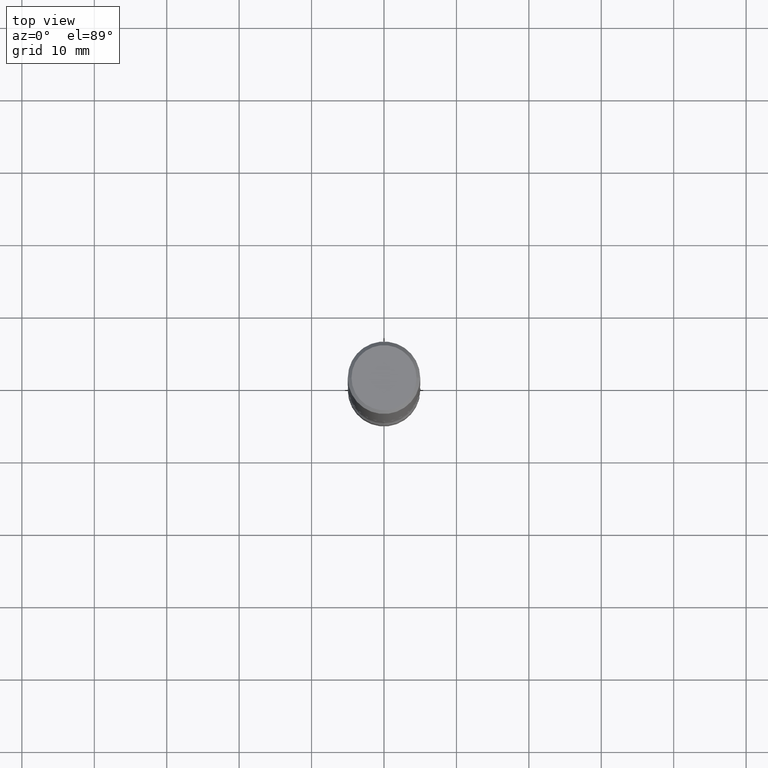
[diagram: clean part render]
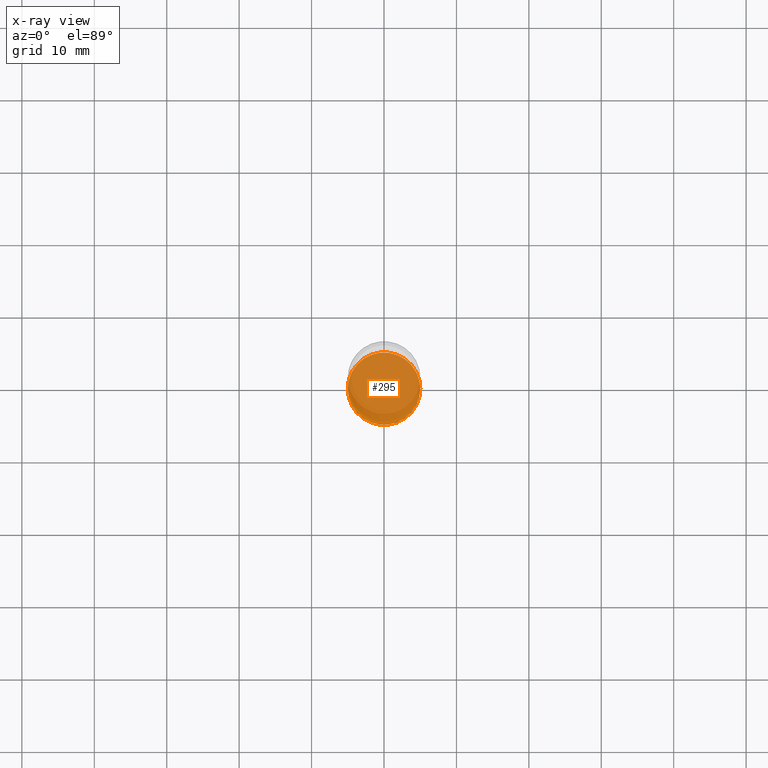
[diagram: x-ray — body ghosted, one internal face saturated and labeled with its STEP entity id]
A machine part, top view, then the same camera in x-ray: the body is ghosted and one INTERNAL B-rep face — a face not visible from any outside direction — is saturated and labeled: STEP entity #295.
In plain terms, the highlighted planar face has unit normal (0, -0, -1).
Its self-contained STEP definition (entity closure, byte-faithful):
#5 = DIRECTION ( 'NONE',  ( -2.445468806185136597E-29, 3.491481338843145583E-15, 1.000000000000000000 ) ) ;
#14 = EDGE_CURVE ( 'NONE', #86, #58, #79, .T. ) ;
#40 = AXIS2_PLACEMENT_3D ( 'NONE', #427, #5, #349 ) ;
#58 = VERTEX_POINT ( 'NONE', #205 ) ;
#79 = CIRCLE ( 'NONE', #469, 0.1968500000000001360 ) ;
#84 = FACE_OUTER_BOUND ( 'NONE', #537, .T. ) ;
#86 = VERTEX_POINT ( 'NONE', #547 ) ;
#89 = DIRECTION ( 'NONE',  ( 2.438088387897960049E-29, -3.491481338843145188E-15, -1.000000000000000000 ) ) ;
#109 = ORIENTED_EDGE ( 'NONE', *, *, #227, .T. ) ;
#152 = DIRECTION ( 'NONE',  ( -2.445468806185136597E-29, 3.491481338843145583E-15, 1.000000000000000000 ) ) ;
#171 = DIRECTION ( 'NONE',  ( -1.000000000000000000, 6.982962677686265922E-15, -4.876176775795935793E-29 ) ) ;
#205 = CARTESIAN_POINT ( 'NONE',  ( 0.1968500000000001360, -1.347118244965850850E-14, -3.464600000000001234 ) ) ;
#227 = EDGE_CURVE ( 'NONE', #58, #86, #458, .T. ) ;
#265 = ORIENTED_EDGE ( 'NONE', *, *, #14, .T. ) ;
#270 = CARTESIAN_POINT ( 'NONE',  ( 8.472571225909027026E-29, -1.209658624655596689E-14, -3.464600000000001234 ) ) ;
#295 = ADVANCED_FACE ( 'NONE', ( #84 ), #306, .F. ) ;
#299 = AXIS2_PLACEMENT_3D ( 'NONE', #270, #89, #171 ) ;
#306 = PLANE ( 'NONE',  #299 ) ;
#349 = DIRECTION ( 'NONE',  ( 1.000000000000000000, -6.982962677686263555E-15, 0.000000000000000000 ) ) ;
#402 = DIRECTION ( 'NONE',  ( 1.000000000000000000, -6.982962677686263555E-15, 0.000000000000000000 ) ) ;
#427 = CARTESIAN_POINT ( 'NONE',  ( 8.472571225909027026E-29, -1.209658624655596689E-14, -3.464600000000001234 ) ) ;
#458 = CIRCLE ( 'NONE', #40, 0.1968500000000001360 ) ;
#469 = AXIS2_PLACEMENT_3D ( 'NONE', #544, #152, #402 ) ;
#537 = EDGE_LOOP ( 'NONE', ( #109, #265 ) ) ;
#544 = CARTESIAN_POINT ( 'NONE',  ( 8.472571225909027026E-29, -1.209658624655596689E-14, -3.464600000000001234 ) ) ;
#547 = CARTESIAN_POINT ( 'NONE',  ( -0.1968500000000001360, -1.148817967225935572E-14, -3.464600000000001234 ) ) ;